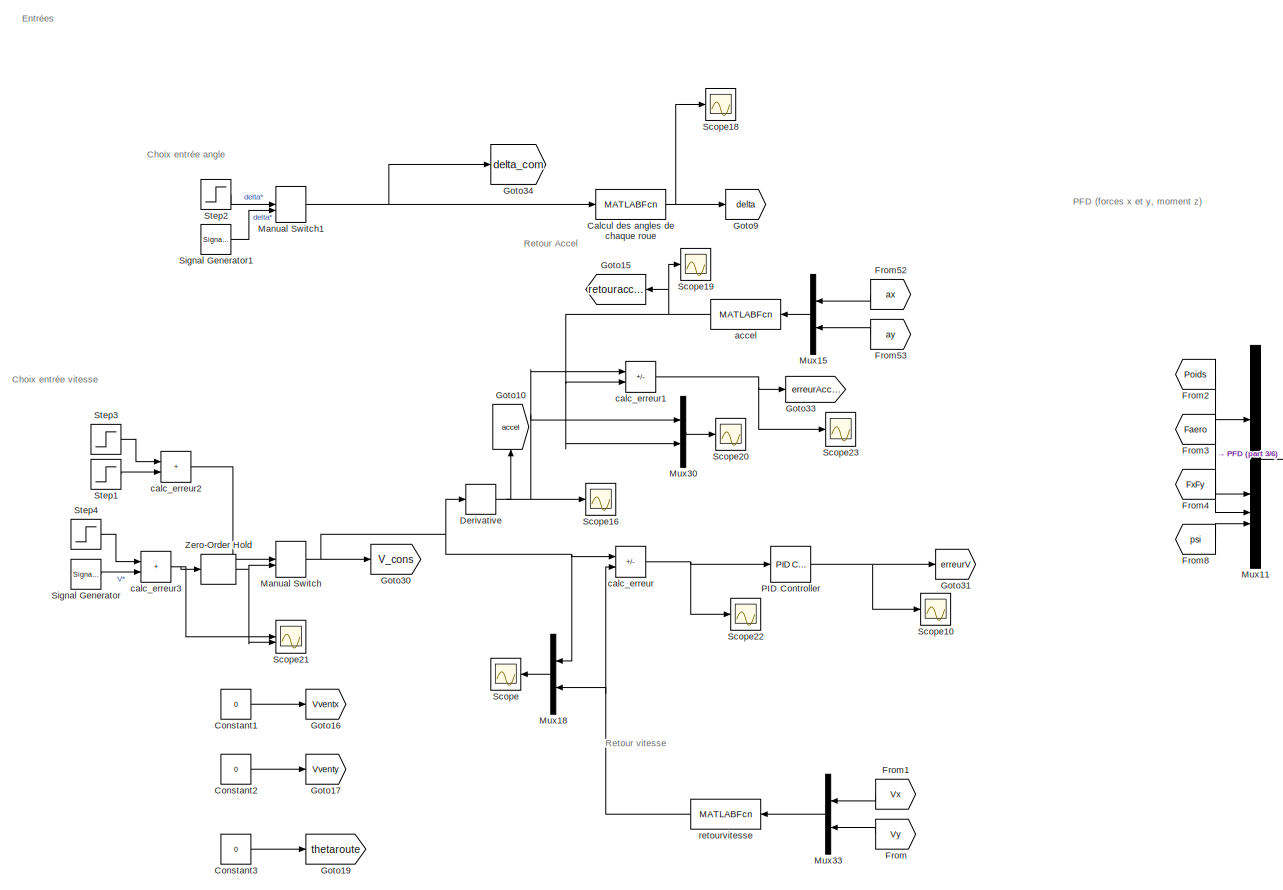
[diagram: root canvas - part 1/6, top left region]
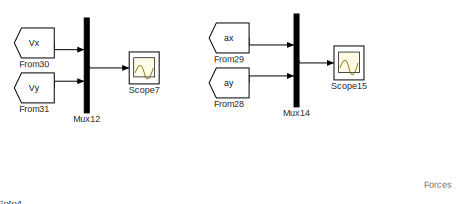
[diagram: root canvas - part 2/6, top center region]
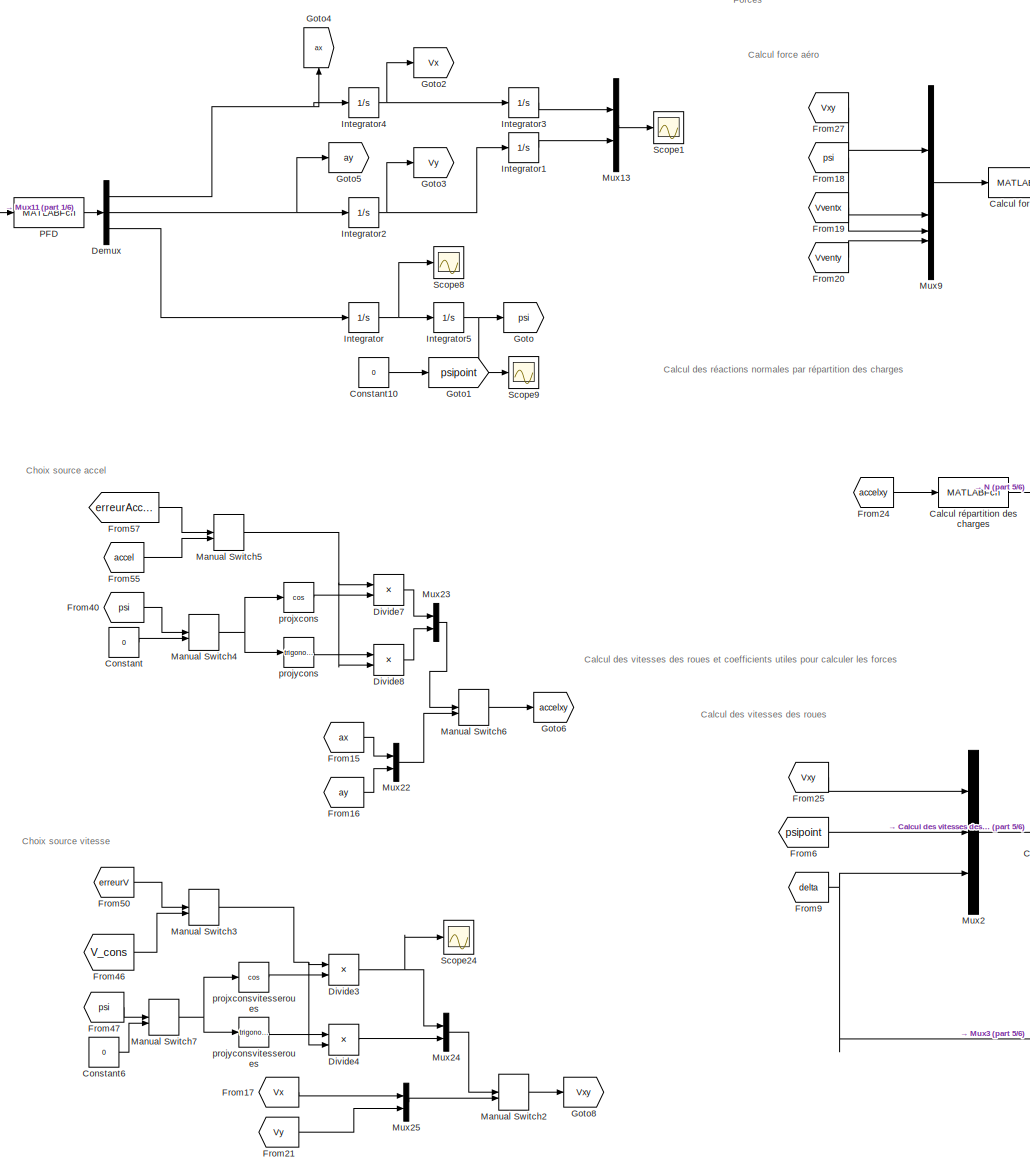
[diagram: root canvas - part 3/6, center side, full height]
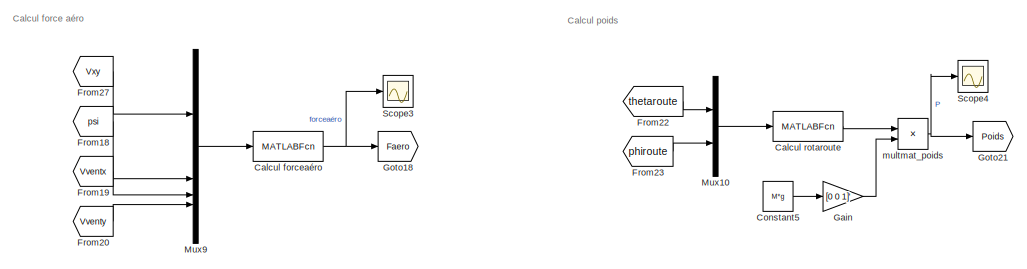
[diagram: root canvas - part 4/6, top right region]
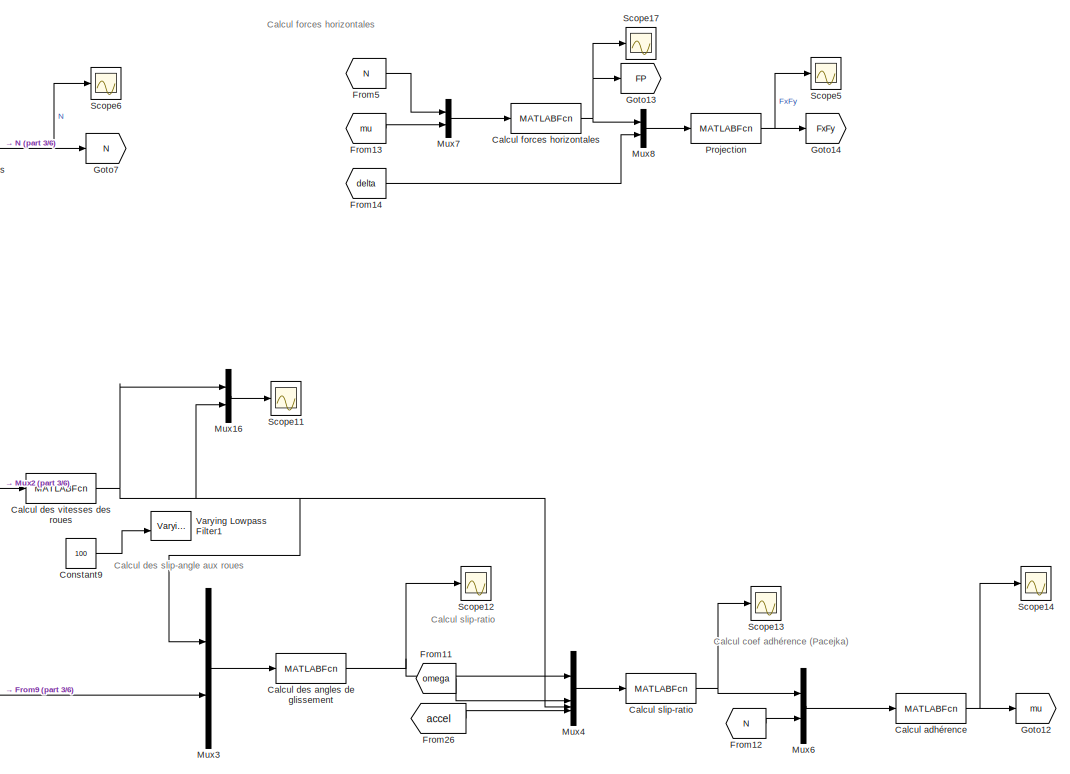
[diagram: root canvas - part 5/6, bottom right region]
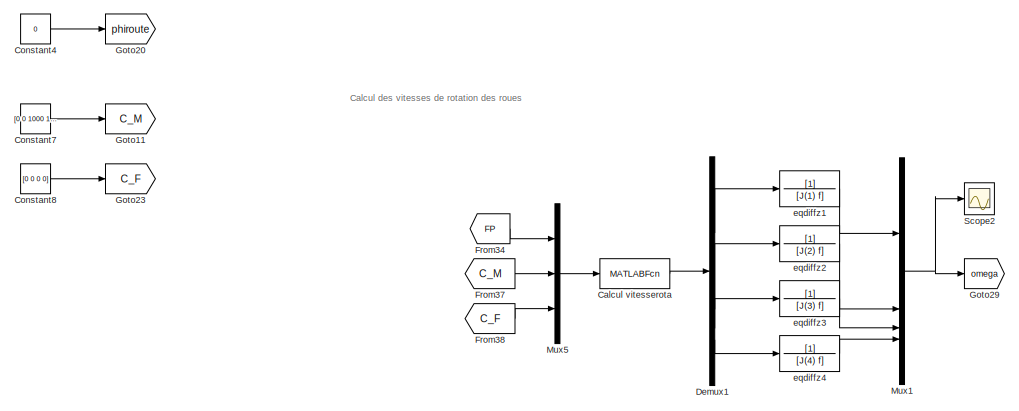
[diagram: root canvas - part 6/6, bottom left region]
MODEL slx_45ba7e22a937
KIND model
CONFIG AbsTol = auto
CONFIG EnableMultiTasking = off
CONFIG FixedStep = auto
CONFIG MaxStep = auto
CONFIG MinStep = auto
CONFIG RelTol = 1e-10
CONFIG SampleTimeConstraint = Unconstrained
CONFIG SolverName = VariableStepAuto
CONFIG StartTime = 0
CONFIG StopTime = 10
BLOCK [MATLABFcn] Calcul adhérence
  MATLABFcn = calcul_adherence(u(1),u(2),u(3),u(4),u(5),u(6),u(7),u(8),Cte_1,Cte_2,Cte_3,Cte_4,u(9),u(10),u(11),u(12))
  OutputDimensions = 4*2
BLOCK [MATLABFcn] Calcul des angles de chaque roue
  MATLABFcn = calcul_delta(u,L,d_f)
  OutputDimensions = 4
BLOCK [MATLABFcn] Calcul des angles de glissement
  MATLABFcn = calcul_slipangle(u(1),u(2),u(3),u(4),u(5),u(6),u(7),u(8),u(9),u(10),u(11),u(12))
  OutputDimensions = 4
BLOCK [MATLABFcn] Calcul des vitesses des roues
  MATLABFcn = calcul_vitessesroues(u(1),u(2),u(3),u(4),u(5),u(6),u(7),d_f,d_r,l_f,l_r)
  OutputDimensions = 8
BLOCK [MATLABFcn] Calcul forceaéro
  MATLABFcn = calcul_forceaero(u(1),u(2),u(3),u(4),u(5),C_x,A_L,A_S,rho)
  OutputDimensions = 2
BLOCK [MATLABFcn] Calcul forces horizontales
  MATLABFcn = calcul_forces(u(1),u(2),u(3),u(4),u(5),u(6),u(7),u(8),u(9),u(10),u(11),u(12))
  OutputDimensions = 4*2
BLOCK [MATLABFcn] Calcul rotaroute
  MATLABFcn = calcul_rotaroute(u(1),u(2))
  Output1D = off
  OutputDimensions = [3 3]
BLOCK [MATLABFcn] Calcul répartition des charges
  MATLABFcn = calcul_N(u(1),u(2),M,L,l_r,h,g)
  OutputDimensions = 4
BLOCK [MATLABFcn] Calcul slip-ratio
  MATLABFcn = calcul_lambda(u(1),u(2),u(3),u(4),R(1),R(2),R(3),R(4),u(5),u(6),u(7),u(8),u(9),u(11),u(13),u(15),u(17))
  OutputDimensions = 4*2
BLOCK [MATLABFcn] Calcul vitesserota
  MATLABFcn = calcul_omega(u(1),u(2),u(3),u(4),u(5),u(6),u(7),u(8),u(9),u(10),u(11),u(12),u(13),u(14),u(15),u(16),R(1),R(2),R(3),R(4),J(1),J(2),J(3),J(4))
  OutputDimensions = 4
BLOCK [Constant] Constant
  Value = 0
BLOCK [Constant] Constant1
  Value = 0
BLOCK [Constant] Constant10
  Value = 0
BLOCK [Constant] Constant2
  Value = 0
BLOCK [Constant] Constant3
  Value = 0
BLOCK [Constant] Constant4
  Value = 0
BLOCK [Constant] Constant5
  Value = M*g
  VectorParams1D = off
BLOCK [Constant] Constant6
  Value = 0
BLOCK [Constant] Constant7
  Value = [0 0 1000 1000]
BLOCK [Constant] Constant8
  Value = [0 0 0 0]
BLOCK [Constant] Constant9
  Commented = on
  Value = 100
BLOCK [Demux] Demux
  Outputs = 3
BLOCK [Demux] Demux1
BLOCK [Derivative] Derivative
BLOCK [Product] Divide3
  Inputs = **
BLOCK [Product] Divide4
  Inputs = **
BLOCK [Product] Divide7
  Inputs = **
BLOCK [Product] Divide8
  Inputs = **
BLOCK [From] From
  GotoTag = Vy
  NameLocation = top
BLOCK [From] From1
  GotoTag = Vx
  NameLocation = top
BLOCK [From] From11
  GotoTag = omega
BLOCK [From] From12
  GotoTag = N
BLOCK [From] From13
  GotoTag = mu
BLOCK [From] From14
  GotoTag = delta
BLOCK [From] From15
  GotoTag = ax
BLOCK [From] From16
  GotoTag = ay
BLOCK [From] From17
  GotoTag = Vx
BLOCK [From] From18
  GotoTag = psi
BLOCK [From] From19
  GotoTag = Vventx
BLOCK [From] From2
  GotoTag = Poids
BLOCK [From] From20
  GotoTag = Vventy
BLOCK [From] From21
  GotoTag = Vy
BLOCK [From] From22
  GotoTag = thetaroute
BLOCK [From] From23
  GotoTag = phiroute
BLOCK [From] From24
  GotoTag = accelxy
BLOCK [From] From25
  GotoTag = Vxy
BLOCK [From] From26
  GotoTag = accel
BLOCK [From] From27
  GotoTag = Vxy
BLOCK [From] From28
  GotoTag = ay
BLOCK [From] From29
  GotoTag = ax
BLOCK [From] From3
  GotoTag = Faero
BLOCK [From] From30
  GotoTag = Vx
BLOCK [From] From31
  GotoTag = Vy
BLOCK [From] From34
  GotoTag = FP
BLOCK [From] From37
  GotoTag = C_M
BLOCK [From] From38
  GotoTag = C_F
BLOCK [From] From4
  GotoTag = FxFy
BLOCK [From] From40
  GotoTag = psi
BLOCK [From] From46
  GotoTag = V_cons
BLOCK [From] From47
  GotoTag = psi
BLOCK [From] From5
  GotoTag = N
BLOCK [From] From50
  GotoTag = erreurV
BLOCK [From] From52
  GotoTag = ax
  NameLocation = top
BLOCK [From] From53
  GotoTag = ay
  NameLocation = top
BLOCK [From] From55
  GotoTag = accel
BLOCK [From] From57
  GotoTag = erreurAccel
BLOCK [From] From6
  GotoTag = psipoint
BLOCK [From] From8
  GotoTag = psi
BLOCK [From] From9
  GotoTag = delta
BLOCK [Gain] Gain
  Gain = [0 0 1]'
BLOCK [Goto] Goto
  GotoTag = psi
BLOCK [Goto] Goto1
  GotoTag = psipoint
BLOCK [Goto] Goto10
  GotoTag = accel
  NameLocation = right
BLOCK [Goto] Goto11
  GotoTag = C_M
BLOCK [Goto] Goto12
  GotoTag = mu
BLOCK [Goto] Goto13
  GotoTag = FP
BLOCK [Goto] Goto14
  GotoTag = FxFy
BLOCK [Goto] Goto15
  GotoTag = retouraccel
  NameLocation = top
BLOCK [Goto] Goto16
  GotoTag = Vventx
BLOCK [Goto] Goto17
  GotoTag = Vventy
BLOCK [Goto] Goto18
  GotoTag = Faero
BLOCK [Goto] Goto19
  GotoTag = thetaroute
BLOCK [Goto] Goto2
  GotoTag = Vx
  NameLocation = top
BLOCK [Goto] Goto20
  GotoTag = phiroute
BLOCK [Goto] Goto21
  GotoTag = Poids
BLOCK [Goto] Goto23
  GotoTag = C_F
BLOCK [Goto] Goto29
  GotoTag = omega
BLOCK [Goto] Goto3
  GotoTag = Vy
  NameLocation = top
BLOCK [Goto] Goto30
  GotoTag = V_cons
BLOCK [Goto] Goto31
  GotoTag = erreurV
BLOCK [Goto] Goto33
  GotoTag = erreurAccel
BLOCK [Goto] Goto34
  GotoTag = delta_com
BLOCK [Goto] Goto4
  GotoTag = ax
  NameLocation = right
BLOCK [Goto] Goto5
  GotoTag = ay
BLOCK [Goto] Goto6
  GotoTag = accelxy
BLOCK [Goto] Goto7
  GotoTag = N
BLOCK [Goto] Goto8
  GotoTag = Vxy
BLOCK [Goto] Goto9
  GotoTag = delta
BLOCK [Integrator] Integrator
BLOCK [Integrator] Integrator1
BLOCK [Integrator] Integrator2
BLOCK [Integrator] Integrator3
BLOCK [Integrator] Integrator4
BLOCK [Integrator] Integrator5
BLOCK [ManualSwitch] Manual Switch
BLOCK [ManualSwitch] Manual Switch1
BLOCK [ManualSwitch] Manual Switch2
BLOCK [ManualSwitch] Manual Switch3
  CurrentSetting = 0
BLOCK [ManualSwitch] Manual Switch4
  CurrentSetting = 0
BLOCK [ManualSwitch] Manual Switch5
  CurrentSetting = 0
BLOCK [ManualSwitch] Manual Switch6
BLOCK [ManualSwitch] Manual Switch7
  CurrentSetting = 0
BLOCK [Mux] Mux1
  DisplayOption = bar
BLOCK [Mux] Mux10
  DisplayOption = bar
  Inputs = 2
BLOCK [Mux] Mux11
  DisplayOption = bar
BLOCK [Mux] Mux12
  DisplayOption = bar
  Inputs = 2
BLOCK [Mux] Mux13
  DisplayOption = bar
  Inputs = 2
BLOCK [Mux] Mux14
  DisplayOption = bar
  Inputs = 2
BLOCK [Mux] Mux15
  DisplayOption = bar
  Inputs = 2
  NameLocation = top
BLOCK [Mux] Mux16
  DisplayOption = bar
  Inputs = 2
BLOCK [Mux] Mux18
  DisplayOption = bar
  Inputs = 2
  NameLocation = top
BLOCK [Mux] Mux2
  DisplayOption = bar
  Inputs = 3
BLOCK [Mux] Mux22
  DisplayOption = bar
  Inputs = 2
BLOCK [Mux] Mux23
  DisplayOption = bar
  Inputs = 2
BLOCK [Mux] Mux24
  DisplayOption = bar
  Inputs = 2
BLOCK [Mux] Mux25
  DisplayOption = bar
  Inputs = 2
BLOCK [Mux] Mux3
  DisplayOption = bar
  Inputs = 2
BLOCK [Mux] Mux30
  DisplayOption = bar
  Inputs = 2
BLOCK [Mux] Mux33
  DisplayOption = bar
  Inputs = 2
  NameLocation = top
BLOCK [Mux] Mux4
  DisplayOption = bar
BLOCK [Mux] Mux5
  DisplayOption = bar
  Inputs = 3
BLOCK [Mux] Mux6
  DisplayOption = bar
  Inputs = 2
BLOCK [Mux] Mux7
  DisplayOption = bar
  Inputs = 2
BLOCK [Mux] Mux8
  DisplayOption = bar
  Inputs = 2
BLOCK [Mux] Mux9
  DisplayOption = bar
BLOCK [MATLABFcn] PFD
  MATLABFcn = eqpfd(u(1),u(2),u(4),u(5),u(6),u(7),u(8),u(9),u(10),u(11),u(12),u(13),u(14),d_f,d_r,l_f,l_r,M,Iz)
  OutputDimensions = 3
BLOCK [Reference] PID Controller  REF=slpidlib/PID Controller
  SourceBlock = slpidlib/PID Controller
  SourceType = PID 1dof
BLOCK [MATLABFcn] Projection
  MATLABFcn = projection(u(1),u(2),u(3),u(4),u(5),u(6),u(7),u(8),u(9),u(10),u(11),u(12))
  OutputDimensions = 8
BLOCK [Scope] Scope
  Floating = off
  NameLocation = top
  NumInputPorts = 1
  ScopeSpecificationString = Simulink.scopes.TimeScopeBlockCfg('CurrentConfiguration', extmgr.ConfigurationSet(extmgr.Configuration('Core','General UI',true),extmgr.Configuration('Core','Source UI',true),extmgr.Configuration('Sources','WiredSimulink',true,'DataLoggingVariableName','ScopeData1'),extmgr.Configuration('Visuals','Time Domain',true,'SerializedDisplays',{struct('MinYLimReal','-331.43502','MaxYLimReal','39.91253','Y...<+1586ch>
BLOCK [Scope] Scope1
  Floating = off
  NumInputPorts = 1
  ScopeSpecificationString = Simulink.scopes.TimeScopeBlockCfg('CurrentConfiguration', extmgr.ConfigurationSet(extmgr.Configuration('Core','General UI',true),extmgr.Configuration('Core','Source UI',true),extmgr.Configuration('Sources','WiredSimulink',true,'DataLoggingVariableName','ScopeData8'),extmgr.Configuration('Visuals','Time Domain',true,'SerializedDisplays',{struct('MinYLimReal','-0.00004','MaxYLimReal','0.00009','YLab...<+1517ch>
BLOCK [Scope] Scope10
  Floating = off
  NumInputPorts = 1
  ScopeSpecificationString = Simulink.scopes.TimeScopeBlockCfg('CurrentConfiguration', extmgr.ConfigurationSet(extmgr.Configuration('Core','General UI',true),extmgr.Configuration('Core','Source UI',true),extmgr.Configuration('Sources','WiredSimulink',true,'DataLoggingVariableName','ScopeData12'),extmgr.Configuration('Visuals','Time Domain',true,'SerializedDisplays',{struct('MinYLimReal','1.94508','MaxYLimReal','65.82763','YLa...<+1540ch>
BLOCK [Scope] Scope11
  Floating = off
  NumInputPorts = 1
  ScopeSpecificationString = Simulink.scopes.TimeScopeBlockCfg('CurrentConfiguration', extmgr.ConfigurationSet(extmgr.Configuration('Core','General UI',true),extmgr.Configuration('Core','Source UI',true),extmgr.Configuration('Sources','WiredSimulink',true,'DataLoggingVariableName','ScopeData1'),extmgr.Configuration('Visuals','Time Domain',true,'SerializedDisplays',{struct('MinYLimReal','-0.39159','MaxYLimReal','3.52428','YLab...<+2465ch>
BLOCK [Scope] Scope12
  Floating = off
  NumInputPorts = 1
  ScopeSpecificationString = Simulink.scopes.TimeScopeBlockCfg('CurrentConfiguration', extmgr.ConfigurationSet(extmgr.Configuration('Core','General UI',true),extmgr.Configuration('Core','Source UI',true),extmgr.Configuration('Sources','WiredSimulink',true,'DataLoggingVariableName','ScopeData2'),extmgr.Configuration('Visuals','Time Domain',true,'SerializedDisplays',{struct('MinYLimReal','-1.00000','MaxYLimReal','1.00000','YLab...<+1751ch>
BLOCK [Scope] Scope13
  Floating = off
  NumInputPorts = 1
  ScopeSpecificationString = Simulink.scopes.TimeScopeBlockCfg('CurrentConfiguration', extmgr.ConfigurationSet(extmgr.Configuration('Core','General UI',true),extmgr.Configuration('Core','Source UI',true),extmgr.Configuration('Sources','WiredSimulink',true,'DataLoggingVariableName','ScopeData3'),extmgr.Configuration('Visuals','Time Domain',true,'SerializedDisplays',{struct('MinYLimReal','-0.125','MaxYLimReal','1.125','YLabelRe...<+1892ch>
BLOCK [Scope] Scope14
  Floating = off
  NumInputPorts = 1
  ScopeSpecificationString = Simulink.scopes.TimeScopeBlockCfg('CurrentConfiguration', extmgr.ConfigurationSet(extmgr.Configuration('Core','General UI',true),extmgr.Configuration('Core','Source UI',true),extmgr.Configuration('Sources','WiredSimulink',true,'DataLoggingVariableName','ScopeData4'),extmgr.Configuration('Visuals','Time Domain',true,'SerializedDisplays',{struct('MinYLimReal','-0.5801','MaxYLimReal','1.17557','YLabe...<+1842ch>
BLOCK [Scope] Scope15
  Floating = off
  NumInputPorts = 1
  ScopeSpecificationString = Simulink.scopes.TimeScopeBlockCfg('CurrentConfiguration', extmgr.ConfigurationSet(extmgr.Configuration('Core','General UI',true),extmgr.Configuration('Core','Source UI',true),extmgr.Configuration('Sources','WiredSimulink',true,'DataLoggingVariableName','ScopeData13'),extmgr.Configuration('Visuals','Time Domain',true,'SerializedDisplays',{struct('MinYLimReal','-4902.36908','MaxYLimReal','544.71879'...<+1650ch>
BLOCK [Scope] Scope16
  Floating = off
  NumInputPorts = 1
  ScopeSpecificationString = Simulink.scopes.TimeScopeBlockCfg('CurrentConfiguration', extmgr.ConfigurationSet(extmgr.Configuration('Core','General UI',true),extmgr.Configuration('Core','Source UI',true),extmgr.Configuration('Sources','WiredSimulink',true,'DataLoggingVariableName','ScopeData1'),extmgr.Configuration('Visuals','Time Domain',true,'SerializedDisplays',{struct('MinYLimReal','-1.00000','MaxYLimReal','1.00000','YLab...<+1504ch>
BLOCK [Scope] Scope17
  Floating = off
  NumInputPorts = 1
  ScopeSpecificationString = Simulink.scopes.TimeScopeBlockCfg('CurrentConfiguration', extmgr.ConfigurationSet(extmgr.Configuration('Core','General UI',true),extmgr.Configuration('Core','Source UI',true),extmgr.Configuration('Sources','WiredSimulink',true,'DataLoggingVariableName','ScopeData6'),extmgr.Configuration('Visuals','Time Domain',true,'SerializedDisplays',{struct('MinYLimReal','769.57759','MaxYLimReal','1192.42241','...<+1994ch>
BLOCK [Scope] Scope18
  Floating = off
  NumInputPorts = 1
  ScopeSpecificationString = Simulink.scopes.TimeScopeBlockCfg('CurrentConfiguration', extmgr.ConfigurationSet(extmgr.Configuration('Core','General UI',true),extmgr.Configuration('Core','Source UI',true),extmgr.Configuration('Sources','WiredSimulink',true,'DataLoggingVariableName','ScopeData2'),extmgr.Configuration('Visuals','Time Domain',true,'SerializedDisplays',{struct('MinYLimReal','-1.00000','MaxYLimReal','1.00000','YLab...<+1639ch>
BLOCK [Scope] Scope19
  Floating = off
  NumInputPorts = 1
  ScopeSpecificationString = Simulink.scopes.TimeScopeBlockCfg('CurrentConfiguration', extmgr.ConfigurationSet(extmgr.Configuration('Core','General UI',true),extmgr.Configuration('Core','Source UI',true),extmgr.Configuration('Sources','WiredSimulink',true,'DataLoggingVariableName','ScopeData2'),extmgr.Configuration('Visuals','Time Domain',true,'SerializedDisplays',{struct('MinYLimReal','-0.11509','MaxYLimReal','0.01914','YLab...<+1526ch>
BLOCK [Scope] Scope2
  Floating = off
  NumInputPorts = 1
  ScopeSpecificationString = Simulink.scopes.TimeScopeBlockCfg('CurrentConfiguration', extmgr.ConfigurationSet(extmgr.Configuration('Core','General UI',true),extmgr.Configuration('Core','Source UI',true),extmgr.Configuration('Sources','WiredSimulink',true,'DataLoggingVariableName','ScopeData5'),extmgr.Configuration('Visuals','Time Domain',true,'SerializedDisplays',{struct('MinYLimReal','-1.00000','MaxYLimReal','1.00000','YLab...<+1624ch>
BLOCK [Scope] Scope20
  Floating = off
  NumInputPorts = 1
  ScopeSpecificationString = Simulink.scopes.TimeScopeBlockCfg('CurrentConfiguration', extmgr.ConfigurationSet(extmgr.Configuration('Core','General UI',true),extmgr.Configuration('Core','Source UI',true),extmgr.Configuration('Sources','WiredSimulink',true,'DataLoggingVariableName','ScopeData3'),extmgr.Configuration('Visuals','Time Domain',true,'SerializedDisplays',{struct('MinYLimReal','-0.11076','MaxYLimReal','0.01866','YLab...<+1512ch>
BLOCK [Scope] Scope21
  Floating = off
  NumInputPorts = 2
  ScopeSpecificationString = Simulink.scopes.TimeScopeBlockCfg('CurrentConfiguration', extmgr.ConfigurationSet(extmgr.Configuration('Core','General UI',true),extmgr.Configuration('Core','Source UI',true),extmgr.Configuration('Sources','WiredSimulink',true,'DataLoggingVariableName','ScopeData1'),extmgr.Configuration('Visuals','Time Domain',true,'SerializedDisplays',{struct('MinYLimReal','5.55512','MaxYLimReal','5.55947','YLabe...<+1574ch>
BLOCK [Scope] Scope22
  Floating = off
  NumInputPorts = 1
  ScopeSpecificationString = Simulink.scopes.TimeScopeBlockCfg('CurrentConfiguration', extmgr.ConfigurationSet(extmgr.Configuration('Core','General UI',true),extmgr.Configuration('Core','Source UI',true),extmgr.Configuration('Sources','WiredSimulink',true,'DataLoggingVariableName','ScopeData4'),extmgr.Configuration('Visuals','Time Domain',true,'SerializedDisplays',{struct('MinYLimReal','7.33333','MaxYLimReal','9.33333','YLabe...<+1503ch>
BLOCK [Scope] Scope23
  Floating = off
  NumInputPorts = 1
  ScopeSpecificationString = Simulink.scopes.TimeScopeBlockCfg('CurrentConfiguration', extmgr.ConfigurationSet(extmgr.Configuration('Core','General UI',true),extmgr.Configuration('Core','Source UI',true),extmgr.Configuration('Sources','WiredSimulink',true),extmgr.Configuration('Visuals','Time Domain',true,'SerializedDisplays',{struct('MinYLimReal','-0.01866','MaxYLimReal','0.11076','YLabelReal','','MinYLimMag','0.00000','MaxY...<+1494ch>
BLOCK [Scope] Scope24
  Floating = off
  NumInputPorts = 1
  ScopeSpecificationString = Simulink.scopes.TimeScopeBlockCfg('CurrentConfiguration', extmgr.ConfigurationSet(extmgr.Configuration('Core','General UI',true),extmgr.Configuration('Core','Source UI',true),extmgr.Configuration('Sources','WiredSimulink',true,'DataLoggingVariableName','ScopeData2'),extmgr.Configuration('Visuals','Time Domain',true,'SerializedDisplays',{struct('MinYLimReal','-0.03962','MaxYLimReal','0.0523','YLabe...<+1922ch>
BLOCK [Scope] Scope3
  Floating = off
  NumInputPorts = 1
  ScopeSpecificationString = Simulink.scopes.TimeScopeBlockCfg('CurrentConfiguration', extmgr.ConfigurationSet(extmgr.Configuration('Core','General UI',true),extmgr.Configuration('Core','Source UI',true),extmgr.Configuration('Sources','WiredSimulink',true,'DataLoggingVariableName','ScopeData6'),extmgr.Configuration('Visuals','Time Domain',true,'SerializedDisplays',{struct('MinYLimReal','-0.90018','MaxYLimReal','0.10002','YLab...<+1612ch>
BLOCK [Scope] Scope4
  Floating = off
  NumInputPorts = 1
  ScopeSpecificationString = Simulink.scopes.TimeScopeBlockCfg('CurrentConfiguration', extmgr.ConfigurationSet(extmgr.Configuration('Core','General UI',true),extmgr.Configuration('Core','Source UI',true),extmgr.Configuration('Sources','WiredSimulink',true,'DataLoggingVariableName','ScopeData5'),extmgr.Configuration('Visuals','Time Domain',true,'SerializedDisplays',{struct('MinYLimReal','-490.5','MaxYLimReal','4414.5','YLabelR...<+1600ch>
BLOCK [Scope] Scope5
  Floating = off
  NumInputPorts = 1
  ScopeSpecificationString = Simulink.scopes.TimeScopeBlockCfg('CurrentConfiguration', extmgr.ConfigurationSet(extmgr.Configuration('Core','General UI',true),extmgr.Configuration('Core','Source UI',true),extmgr.Configuration('Sources','WiredSimulink',true,'DataLoggingVariableName','ScopeData7'),extmgr.Configuration('Visuals','Time Domain',true,'SerializedDisplays',{struct('MinYLimReal','-667.1988','MaxYLimReal','1352.06424','...<+1787ch>
BLOCK [Scope] Scope6
  Floating = off
  NumInputPorts = 1
  ScopeSpecificationString = Simulink.scopes.TimeScopeBlockCfg('CurrentConfiguration', extmgr.ConfigurationSet(extmgr.Configuration('Core','General UI',true),extmgr.Configuration('Core','Source UI',true),extmgr.Configuration('Sources','WiredSimulink',true,'DataLoggingVariableName','ScopeData7'),extmgr.Configuration('Visuals','Time Domain',true,'SerializedDisplays',{struct('MinYLimReal','769.57759','MaxYLimReal','1192.42241','...<+1649ch>
BLOCK [Scope] Scope7
  Floating = off
  NumInputPorts = 1
  ScopeSpecificationString = Simulink.scopes.TimeScopeBlockCfg('CurrentConfiguration', extmgr.ConfigurationSet(extmgr.Configuration('Core','General UI',true),extmgr.Configuration('Core','Source UI',true),extmgr.Configuration('Sources','WiredSimulink',true,'DataLoggingVariableName','ScopeData9'),extmgr.Configuration('Visuals','Time Domain',true,'SerializedDisplays',{struct('MinYLimReal','-36.7875','MaxYLimReal','331.0875','YLa...<+1618ch>
BLOCK [Scope] Scope8
  Floating = off
  NumInputPorts = 1
  ScopeSpecificationString = Simulink.scopes.TimeScopeBlockCfg('CurrentConfiguration', extmgr.ConfigurationSet(extmgr.Configuration('Core','General UI',true),extmgr.Configuration('Core','Source UI',true),extmgr.Configuration('Sources','WiredSimulink',true,'DataLoggingVariableName','ScopeData10'),extmgr.Configuration('Visuals','Time Domain',true,'SerializedDisplays',{struct('MinYLimReal','-0.00317','MaxYLimReal','0.02853','YLa...<+1505ch>
BLOCK [Scope] Scope9
  Floating = off
  NumInputPorts = 1
  ScopeSpecificationString = Simulink.scopes.TimeScopeBlockCfg('CurrentConfiguration', extmgr.ConfigurationSet(extmgr.Configuration('Core','General UI',true),extmgr.Configuration('Core','Source UI',true),extmgr.Configuration('Sources','WiredSimulink',true,'DataLoggingVariableName','ScopeData3'),extmgr.Configuration('Visuals','Time Domain',true,'SerializedDisplays',{struct('MinYLimReal','-0.00000000000046','MaxYLimReal','0.000...<+1575ch>
BLOCK [SignalGenerator] Signal Generator
  Amplitude = 10/3.6
  Frequency = 0.05
BLOCK [SignalGenerator] Signal Generator1
  Frequency = 0.01
  Units = rad/sec
BLOCK [Step] Step1
  After = 10/3.6
  SampleTime = 0
  Time = 0
BLOCK [Step] Step2
  After = 0
  SampleTime = 0
  Time = 0
BLOCK [Step] Step3
  After = 0
  SampleTime = 0
  Time = 5
BLOCK [Step] Step4
  After = 20/3.6
  SampleTime = 0
  Time = 0
BLOCK [Reference] Varying Lowpass Filter1  REF=cstblocks/Linear Parameter Varying/Varying Lowpass Filter
  Commented = on
  SourceBlock = cstblocks/Linear Parameter Varying/Varying Lowpass Filter
  SourceType = Varying Lowpass Filter
BLOCK [ZeroOrderHold] Zero-Order Hold
  SampleTime = 0.5
BLOCK [MATLABFcn] accel
  MATLABFcn = calcul_retourvitesse(u(1),u(2))
  NameLocation = top
  OutputDimensions = 1
BLOCK [Sum] calc_erreur
  IconShape = rectangular
  Inputs = +-
BLOCK [Sum] calc_erreur1
  IconShape = rectangular
  Inputs = +-
BLOCK [Sum] calc_erreur2
  IconShape = rectangular
BLOCK [Sum] calc_erreur3
  IconShape = rectangular
BLOCK [TransferFcn] eqdiffz1
  Denominator = [J(1) f]
BLOCK [TransferFcn] eqdiffz2
  Denominator = [J(2) f]
BLOCK [TransferFcn] eqdiffz3
  Denominator = [J(3) f]
BLOCK [TransferFcn] eqdiffz4
  Denominator = [J(4) f]
BLOCK [Product] multmat_poids
  Multiplication = Matrix(*)
BLOCK [Trigonometry] projxcons
  Operator = cos
BLOCK [Trigonometry] projxconsvitesseroues
  Operator = cos
BLOCK [Trigonometry] projycons
BLOCK [Trigonometry] projyconsvitesseroues
BLOCK [MATLABFcn] retourvitesse
  MATLABFcn = calcul_retourvitesse(u(1),u(2))
  NameLocation = top
  OutputDimensions = 1
ANNOTATION (root): Calcul coef adhérence (Pacejka)
ANNOTATION (root): Calcul des réactions normales par répartition des charges
ANNOTATION (root): Calcul des slip-angle aux roues
ANNOTATION (root): Calcul des vitesses de rotation des roues
ANNOTATION (root): Calcul des vitesses des roues
ANNOTATION (root): Calcul des vitesses des roues et coefficients utiles pour calculer les forces
ANNOTATION (root): Calcul force aéro
ANNOTATION (root): Calcul forces horizontales
ANNOTATION (root): Calcul poids
ANNOTATION (root): Calcul slip-ratio
ANNOTATION (root): Choix entrée angle
ANNOTATION (root): Choix entrée vitesse
ANNOTATION (root): Choix source accel
ANNOTATION (root): Choix source vitesse
ANNOTATION (root): Entrées
ANNOTATION (root): Forces
ANNOTATION (root): PFD (forces x et y, moment z)
ANNOTATION (root): Retour Accel
ANNOTATION (root): Retour vitesse
NET Calcul adhérence:1 -> Goto12:1, Scope14:1
NET Calcul des angles de chaque roue:1 -> Goto9:1, Scope18:1
NET Calcul des angles de glissement:1 -> Mux4:1, Scope12:1
NET Calcul des vitesses des roues:1 -> Mux16:1, Mux16:2, Mux3:1, Mux4:3
NET Calcul forceaéro:1 -> Goto18:1, Scope3:1
NET Calcul forces horizontales:1 -> Goto13:1, Mux8:1, Scope17:1
LINE Calcul rotaroute:1 -> multmat_poids:1
NET Calcul répartition des charges:1 -> Goto7:1, Scope6:1
NET Calcul slip-ratio:1 -> Mux6:1, Scope13:1
LINE Calcul vitesserota:1 -> Demux1:1
LINE Constant10:1 -> Goto1:1
LINE Constant1:1 -> Goto16:1
LINE Constant2:1 -> Goto17:1
LINE Constant3:1 -> Goto19:1
LINE Constant4:1 -> Goto20:1
LINE Constant5:1 -> Gain:1
LINE Constant6:1 -> Manual Switch7:2
LINE Constant7:1 -> Goto11:1
LINE Constant8:1 -> Goto23:1
LINE Constant9:1 -> Varying Lowpass Filter1:2
LINE Constant:1 -> Manual Switch4:2
LINE Demux1:1 -> eqdiffz1:1
LINE Demux1:2 -> eqdiffz2:1
LINE Demux1:3 -> eqdiffz3:1
LINE Demux1:4 -> eqdiffz4:1
NET Demux:1 -> Goto4:1, Integrator4:1
NET Demux:2 -> Goto5:1, Integrator2:1
LINE Demux:3 -> Integrator:1
NET Derivative:1 -> Goto10:1, Mux30:1, Scope16:1, calc_erreur1:1
NET Divide3:1 -> Mux24:1, Scope24:1
LINE Divide4:1 -> Mux24:2
LINE Divide7:1 -> Mux23:1
LINE Divide8:1 -> Mux23:2
LINE From11:1 -> Mux4:2
LINE From12:1 -> Mux6:2
LINE From13:1 -> Mux7:2
LINE From14:1 -> Mux8:2
LINE From15:1 -> Mux22:1
LINE From16:1 -> Mux22:2
LINE From17:1 -> Mux25:1
LINE From18:1 -> Mux9:2
LINE From19:1 -> Mux9:3
LINE From1:1 -> Mux33:1
LINE From20:1 -> Mux9:4
LINE From21:1 -> Mux25:2
LINE From22:1 -> Mux10:1
LINE From23:1 -> Mux10:2
LINE From24:1 -> Calcul répartition des charges:1
LINE From25:1 -> Mux2:1
LINE From26:1 -> Mux4:4
LINE From27:1 -> Mux9:1
LINE From28:1 -> Mux14:2
LINE From29:1 -> Mux14:1
LINE From2:1 -> Mux11:1
LINE From30:1 -> Mux12:1
LINE From31:1 -> Mux12:2
LINE From34:1 -> Mux5:1
LINE From37:1 -> Mux5:2
LINE From38:1 -> Mux5:3
LINE From3:1 -> Mux11:2
LINE From40:1 -> Manual Switch4:1
LINE From46:1 -> Manual Switch3:2
LINE From47:1 -> Manual Switch7:1
LINE From4:1 -> Mux11:3
LINE From50:1 -> Manual Switch3:1
LINE From52:1 -> Mux15:1
LINE From53:1 -> Mux15:2
LINE From55:1 -> Manual Switch5:2
LINE From57:1 -> Manual Switch5:1
LINE From5:1 -> Mux7:1
LINE From6:1 -> Mux2:2
LINE From8:1 -> Mux11:4
NET From9:1 -> Mux2:3, Mux3:2
LINE From:1 -> Mux33:2
LINE Gain:1 -> multmat_poids:2
LINE Integrator1:1 -> Mux13:2
NET Integrator2:1 -> Goto3:1, Integrator1:1
LINE Integrator3:1 -> Mux13:1
NET Integrator4:1 -> Goto2:1, Integrator3:1
NET Integrator5:1 -> Goto:1, Scope9:1
NET Integrator:1 -> Integrator5:1, Scope8:1
NET Manual Switch1:1 -> Calcul des angles de chaque roue:1, Goto34:1
LINE Manual Switch2:1 -> Goto8:1
NET Manual Switch3:1 -> Divide3:1, Divide4:2
NET Manual Switch4:1 -> projxcons:1, projycons:1
NET Manual Switch5:1 -> Divide7:1, Divide8:2
LINE Manual Switch6:1 -> Goto6:1
NET Manual Switch7:1 -> projxconsvitesseroues:1, projyconsvitesseroues:1
NET Manual Switch:1 -> Derivative:1, Goto30:1, Mux18:1, calc_erreur:1
LINE Mux10:1 -> Calcul rotaroute:1
LINE Mux11:1 -> PFD:1
LINE Mux12:1 -> Scope7:1
LINE Mux13:1 -> Scope1:1
LINE Mux14:1 -> Scope15:1
LINE Mux15:1 -> accel:1
LINE Mux16:1 -> Scope11:1
LINE Mux18:1 -> Scope:1
NET Mux1:1 -> Goto29:1, Scope2:1
LINE Mux22:1 -> Manual Switch6:2
LINE Mux23:1 -> Manual Switch6:1
LINE Mux24:1 -> Manual Switch2:1
LINE Mux25:1 -> Manual Switch2:2
LINE Mux2:1 -> Calcul des vitesses des roues:1
LINE Mux30:1 -> Scope20:1
LINE Mux33:1 -> retourvitesse:1
LINE Mux3:1 -> Calcul des angles de glissement:1
LINE Mux4:1 -> Calcul slip-ratio:1
LINE Mux5:1 -> Calcul vitesserota:1
LINE Mux6:1 -> Calcul adhérence:1
LINE Mux7:1 -> Calcul forces horizontales:1
LINE Mux8:1 -> Projection:1
LINE Mux9:1 -> Calcul forceaéro:1
LINE PFD:1 -> Demux:1
NET PID Controller:1 -> Goto31:1, Scope10:1
NET Projection:1 -> Goto14:1, Scope5:1
LINE Signal Generator1:1 -> Manual Switch1:2
LINE Signal Generator:1 -> calc_erreur3:2
LINE Step1:1 -> calc_erreur2:2
LINE Step2:1 -> Manual Switch1:1
LINE Step3:1 -> calc_erreur2:1
LINE Step4:1 -> calc_erreur3:1
NET Zero-Order Hold:1 -> Manual Switch:2, Scope21:2
NET accel:1 -> Goto15:1, Mux30:2, Scope19:1, calc_erreur1:2
NET calc_erreur1:1 -> Goto33:1, Scope23:1
LINE calc_erreur2:1 -> Manual Switch:1
NET calc_erreur3:1 -> Scope21:1, Zero-Order Hold:1
NET calc_erreur:1 -> PID Controller:1, Scope22:1
LINE eqdiffz1:1 -> Mux1:1
LINE eqdiffz2:1 -> Mux1:2
LINE eqdiffz3:1 -> Mux1:3
LINE eqdiffz4:1 -> Mux1:4
NET multmat_poids:1 -> Goto21:1, Scope4:1
LINE projxcons:1 -> Divide7:2
LINE projxconsvitesseroues:1 -> Divide3:2
LINE projycons:1 -> Divide8:1
LINE projyconsvitesseroues:1 -> Divide4:1
NET retourvitesse:1 -> Mux18:2, calc_erreur:2
note: NET lines group one-source signal fan-out (src -> all destinations, sorted); 1:1 wires keep LINE
